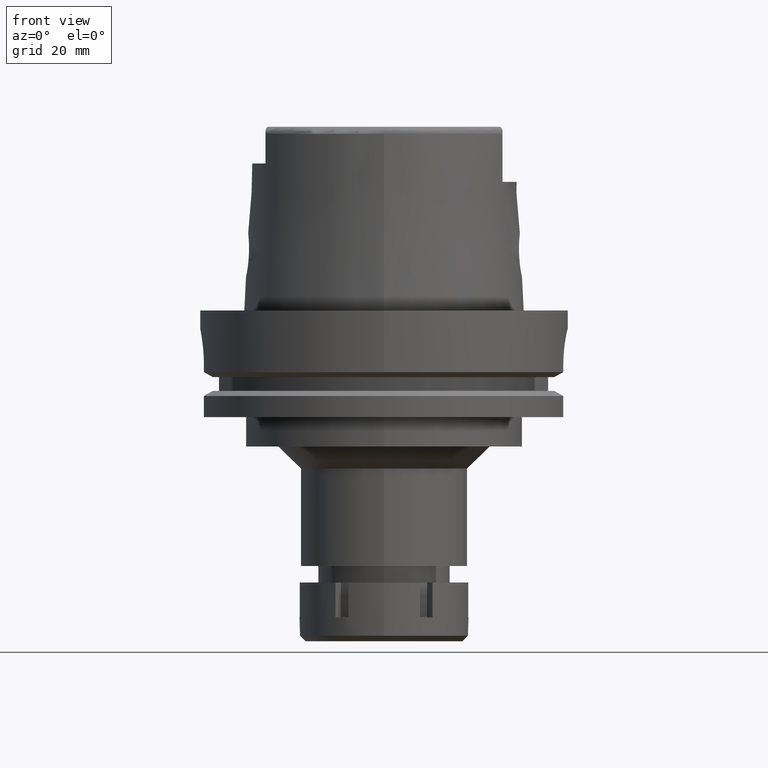
[diagram: clean part render]
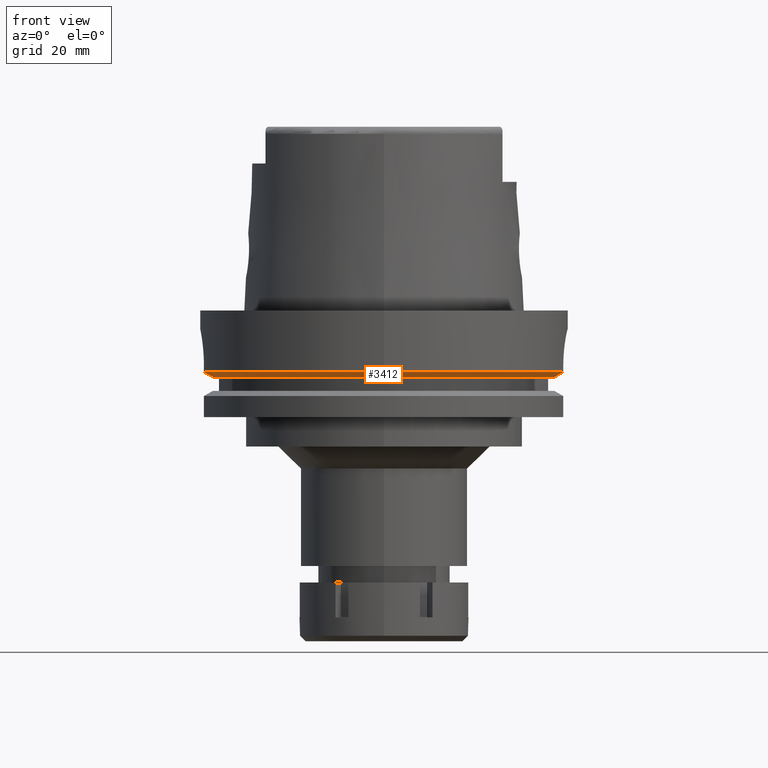
[diagram: same view with one face highlighted and labeled with its STEP entity id]
A machine part, front view. The second image highlights one B-rep face of the part: STEP entity #3412.
In plain terms, the highlighted conical surface has half-angle 60 deg.
Its self-contained STEP definition (entity closure, byte-faithful):
#1 = AXIS2_PLACEMENT_3D ( 'NONE', #4511, #3178, #5096 ) ;
#52 = DIRECTION ( 'NONE',  ( 0.0000000000000000000, 0.0000000000000000000, 1.000000000000000000 ) ) ;
#135 = CARTESIAN_POINT ( 'NONE',  ( 0.0000000000000000000, 0.0000000000000000000, -18.12500000000000000 ) ) ;
#150 = CONICAL_SURFACE ( 'NONE', #2753, 48.81129763208999606, 1.047197551196400456 ) ;
#285 = CIRCLE ( 'NONE', #3673, 47.62259526419000366 ) ;
#327 = EDGE_CURVE ( 'NONE', #5242, #1498, #3744, .T. ) ;
#860 = EDGE_CURVE ( 'NONE', #1498, #4309, #4007, .T. ) ;
#1002 = CARTESIAN_POINT ( 'NONE',  ( 48.77499359303000404, -11.00000000000000000, -16.75240473580999989 ) ) ;
#1030 = FACE_OUTER_BOUND ( 'NONE', #2313, .T. ) ;
#1408 = CARTESIAN_POINT ( 'NONE',  ( 47.14851446809999658, -11.00000000000000000, -17.66774350266999960 ) ) ;
#1498 = VERTEX_POINT ( 'NONE', #4539 ) ;
#1542 = DIRECTION ( 'NONE',  ( -0.9777047459300259868, -0.2099843560504055240, 0.0000000000000000000 ) ) ;
#1691 = CARTESIAN_POINT ( 'NONE',  ( -47.37076227628000424, -10.00000000000000000, -17.66769351206999872 ) ) ;
#1724 = CARTESIAN_POINT ( 'NONE',  ( -46.83084020607000042, -10.00000000000000000, -17.97258933137000270 ) ) ;
#1821 = CARTESIAN_POINT ( 'NONE',  ( 48.50399904748000068, -11.00000000000000000, -16.90503024962000111 ) ) ;
#1909 = CARTESIAN_POINT ( 'NONE',  ( 47.96191616323000062, -11.00000000000000000, -17.21020456769999996 ) ) ;
#2136 = ORIENTED_EDGE ( 'NONE', *, *, #4433, .F. ) ;
#2313 = EDGE_LOOP ( 'NONE', ( #2635, #2136, #4441, #4498, #2803 ) ) ;
#2474 = DIRECTION ( 'NONE',  ( 0.0000000000000000000, 1.000000000000000000, 0.0000000000000000000 ) ) ;
#2590 = CARTESIAN_POINT ( 'NONE',  ( -46.56083740329999898, -10.00000000000000000, -18.12500000000000000 ) ) ;
#2635 = ORIENTED_EDGE ( 'NONE', *, *, #5636, .T. ) ;
#2753 = AXIS2_PLACEMENT_3D ( 'NONE', #2936, #4239, #2474 ) ;
#2803 = ORIENTED_EDGE ( 'NONE', *, *, #327, .F. ) ;
#2936 = CARTESIAN_POINT ( 'NONE',  ( 0.0000000000000000000, 0.0000000000000000000, -17.43870236789999950 ) ) ;
#3178 = DIRECTION ( 'NONE',  ( 0.0000000000000000000, 0.0000000000000000000, 1.000000000000000000 ) ) ;
#3213 = VERTEX_POINT ( 'NONE', #3680 ) ;
#3412 = ADVANCED_FACE ( 'NONE', ( #1030 ), #150, .T. ) ;
#3581 = CARTESIAN_POINT ( 'NONE',  ( -48.72002593967000195, -10.00000000000000000, -16.90500907969000011 ) ) ;
#3673 = AXIS2_PLACEMENT_3D ( 'NONE', #135, #3995, #1542 ) ;
#3680 = CARTESIAN_POINT ( 'NONE',  ( 48.77499359303000404, -11.00000000000000000, -16.75240473580999989 ) ) ;
#3708 = CARTESIAN_POINT ( 'NONE',  ( 46.60605711264999940, -11.00000000000000000, -17.97261191788999923 ) ) ;
#3744 = B_SPLINE_CURVE_WITH_KNOTS ( 'NONE', 3,
 ( #2590, #1724, #1691, #5493, #3581, #4476 ),
 .UNSPECIFIED., .F., .F.,
 ( 4, 1, 1, 4 ),
 ( 0.0000000000000000000, 0.3333333333333000081, 0.6666666666667000474, 1.000000000000000000 ),
 .UNSPECIFIED. ) ;
#3995 = DIRECTION ( 'NONE',  ( 0.0000000000000000000, 0.0000000000000000000, 1.000000000000000000 ) ) ;
#4007 = CIRCLE ( 'NONE', #4105, 49.99999999999997868 ) ;
#4105 = AXIS2_PLACEMENT_3D ( 'NONE', #5180, #52, #5638 ) ;
#4239 = DIRECTION ( 'NONE',  ( 0.0000000000000000000, 0.0000000000000000000, 1.000000000000000000 ) ) ;
#4264 = B_SPLINE_CURVE_WITH_KNOTS ( 'NONE', 3,
 ( #1002, #1821, #1909, #1408, #3708, #5588 ),
 .UNSPECIFIED., .F., .F.,
 ( 4, 1, 1, 4 ),
 ( 0.0000000000000000000, 0.3333333333333000081, 0.6666666666667000474, 1.000000000000000000 ),
 .UNSPECIFIED. ) ;
#4309 = VERTEX_POINT ( 'NONE', #5128 ) ;
#4344 = CARTESIAN_POINT ( 'NONE',  ( 46.33477721644000269, -11.00000000000000000, -18.12500000000000000 ) ) ;
#4433 = EDGE_CURVE ( 'NONE', #3213, #5498, #4264, .T. ) ;
#4441 = ORIENTED_EDGE ( 'NONE', *, *, #6147, .F. ) ;
#4476 = CARTESIAN_POINT ( 'NONE',  ( -48.98979485565999425, -10.00000000000000000, -16.75240473580999989 ) ) ;
#4498 = ORIENTED_EDGE ( 'NONE', *, *, #860, .F. ) ;
#4511 = CARTESIAN_POINT ( 'NONE',  ( 0.0000000000000000000, 0.0000000000000000000, -16.75240473580999989 ) ) ;
#4539 = CARTESIAN_POINT ( 'NONE',  ( -48.98979485565999425, -10.00000000000000000, -16.75240473580999989 ) ) ;
#4868 = CIRCLE ( 'NONE', #1, 50.00000000000000000 ) ;
#5096 = DIRECTION ( 'NONE',  ( 0.0000000000000000000, -1.000000000000000000, 0.0000000000000000000 ) ) ;
#5128 = CARTESIAN_POINT ( 'NONE',  ( 0.0000000000000000000, -50.00000000000000000, -16.75240473580999989 ) ) ;
#5180 = CARTESIAN_POINT ( 'NONE',  ( 0.0000000000000000000, 0.0000000000000000000, -16.75240473580999989 ) ) ;
#5242 = VERTEX_POINT ( 'NONE', #5915 ) ;
#5493 = CARTESIAN_POINT ( 'NONE',  ( -48.18041161677000161, -10.00000000000000000, -17.21015586611000003 ) ) ;
#5498 = VERTEX_POINT ( 'NONE', #4344 ) ;
#5588 = CARTESIAN_POINT ( 'NONE',  ( 46.33477721644000269, -11.00000000000000000, -18.12500000000000000 ) ) ;
#5636 = EDGE_CURVE ( 'NONE', #5242, #5498, #285, .T. ) ;
#5638 = DIRECTION ( 'NONE',  ( -0.9797958971132723072, -0.1999999999999946265, 0.0000000000000000000 ) ) ;
#5915 = CARTESIAN_POINT ( 'NONE',  ( -46.56083740329999898, -10.00000000000000000, -18.12500000000000000 ) ) ;
#6147 = EDGE_CURVE ( 'NONE', #4309, #3213, #4868, .T. ) ;